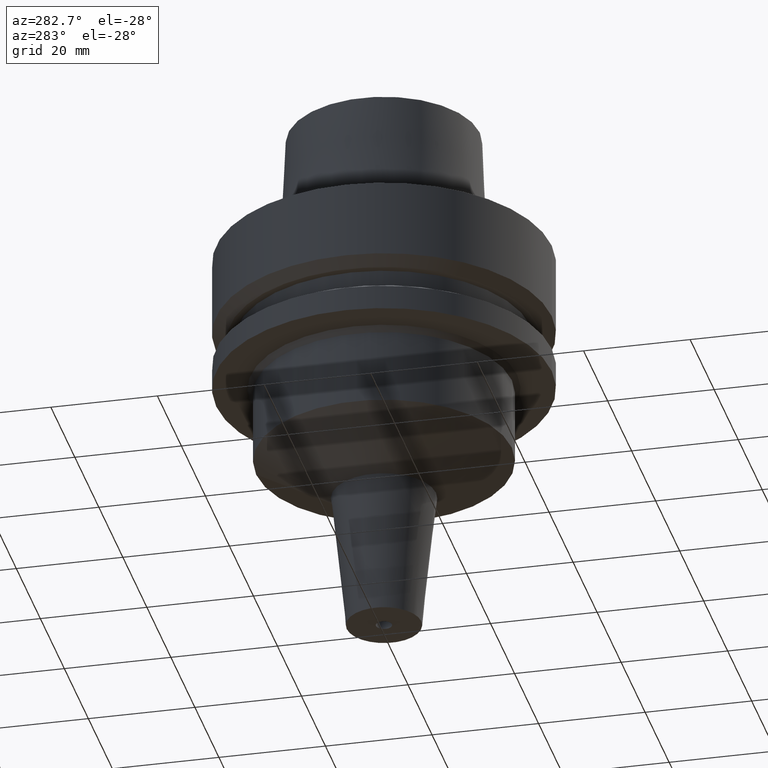
[diagram: clean part render]
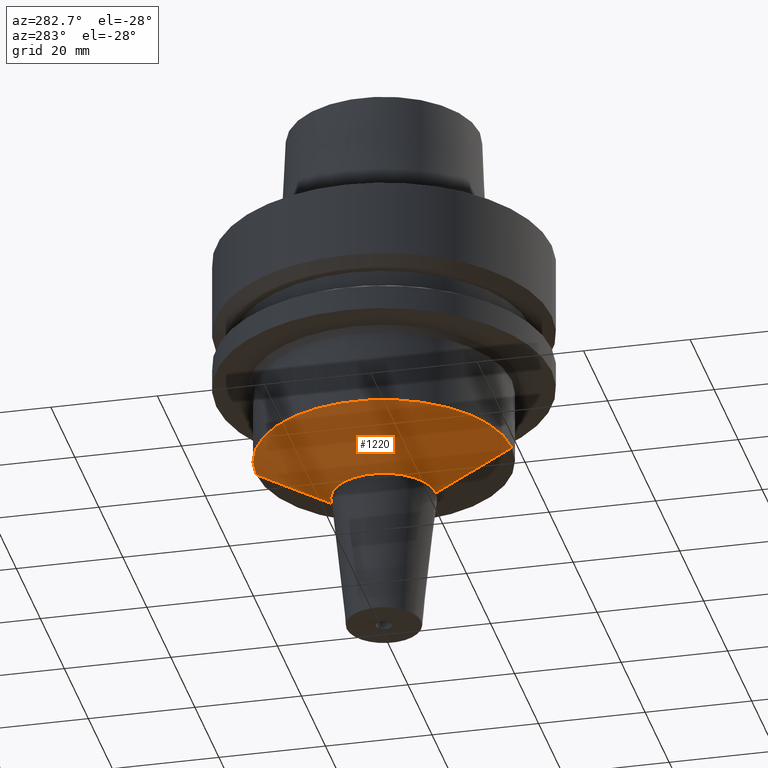
[diagram: same view with one face highlighted and labeled with its STEP entity id]
A machine part, auxiliary view. The second image highlights one B-rep face of the part: STEP entity #1220.
In plain terms, the highlighted conical surface has half-angle 61.6 deg.
Its self-contained STEP definition (entity closure, byte-faithful):
#338=CARTESIAN_POINT('',(0.E0,0.E0,-4.1E1));
#339=DIRECTION('',(0.E0,0.E0,1.E0));
#340=DIRECTION('',(0.E0,1.E0,0.E0));
#341=AXIS2_PLACEMENT_3D('',#338,#339,#340);
#346=DIRECTION('',(0.E0,8.796485728667E-1,-4.756242090702E-1));
#347=VECTOR('',#346,1.618311238153E1);
#348=CARTESIAN_POINT('',(0.E0,-2.4E1,-4.1E1));
#349=LINE('',#348,#347);
#353=CARTESIAN_POINT('',(0.E0,0.E0,-4.869708002676E1));
#354=DIRECTION('',(0.E0,0.E0,-1.E0));
#355=DIRECTION('',(0.E0,-1.E0,0.E0));
#356=AXIS2_PLACEMENT_3D('',#353,#354,#355);
#361=DIRECTION('',(0.E0,-8.796485728667E-1,-4.756242090702E-1));
#362=VECTOR('',#361,1.618311238153E1);
#363=CARTESIAN_POINT('',(0.E0,2.4E1,-4.1E1));
#364=LINE('',#363,#362);
#848=CARTESIAN_POINT('',(0.E0,9.764548289042E0,-4.869708002676E1));
#849=VERTEX_POINT('',#848);
#850=CARTESIAN_POINT('',(0.E0,-9.764548289042E0,-4.869708002676E1));
#851=VERTEX_POINT('',#850);
#852=CARTESIAN_POINT('',(0.E0,2.4E1,-4.1E1));
#853=VERTEX_POINT('',#852);
#854=CARTESIAN_POINT('',(0.E0,-2.4E1,-4.1E1));
#855=VERTEX_POINT('',#854);
#1206=CARTESIAN_POINT('',(0.E0,0.E0,-4.484854001338E1));
#1207=DIRECTION('',(0.E0,0.E0,1.E0));
#1208=DIRECTION('',(0.E0,1.E0,0.E0));
#1209=AXIS2_PLACEMENT_3D('',#1206,#1207,#1208);
#1210=CONICAL_SURFACE('',#1209,1.688227414452E1,6.16E1);
#1212=ORIENTED_EDGE('',*,*,#1211,.F.);
#1213=ORIENTED_EDGE('',*,*,#1201,.T.);
#1215=ORIENTED_EDGE('',*,*,#1214,.T.);
#1217=ORIENTED_EDGE('',*,*,#1216,.T.);
#1218=EDGE_LOOP('',(#1212,#1213,#1215,#1217));
#1219=FACE_OUTER_BOUND('',#1218,.F.);
#342=CIRCLE('',#341,2.4E1);
#357=CIRCLE('',#356,9.764548289042E0);
#1201=EDGE_CURVE('',#853,#855,#342,.T.);
#1211=EDGE_CURVE('',#853,#849,#364,.T.);
#1214=EDGE_CURVE('',#855,#851,#349,.T.);
#1216=EDGE_CURVE('',#851,#849,#357,.T.);
#1220=ADVANCED_FACE('',(#1219),#1210,.T.);